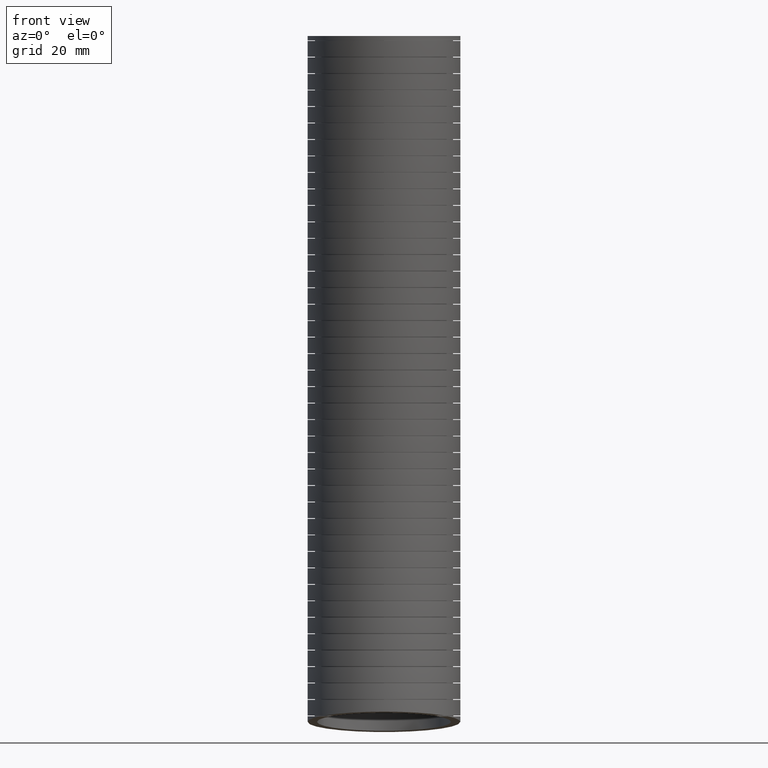
[diagram: clean part render]
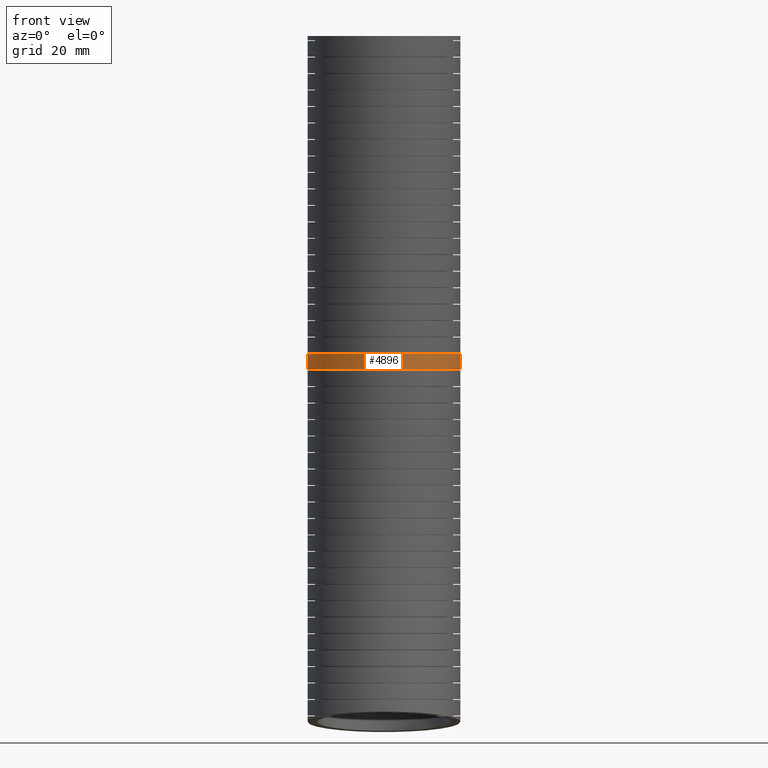
[diagram: same view with one face highlighted and labeled with its STEP entity id]
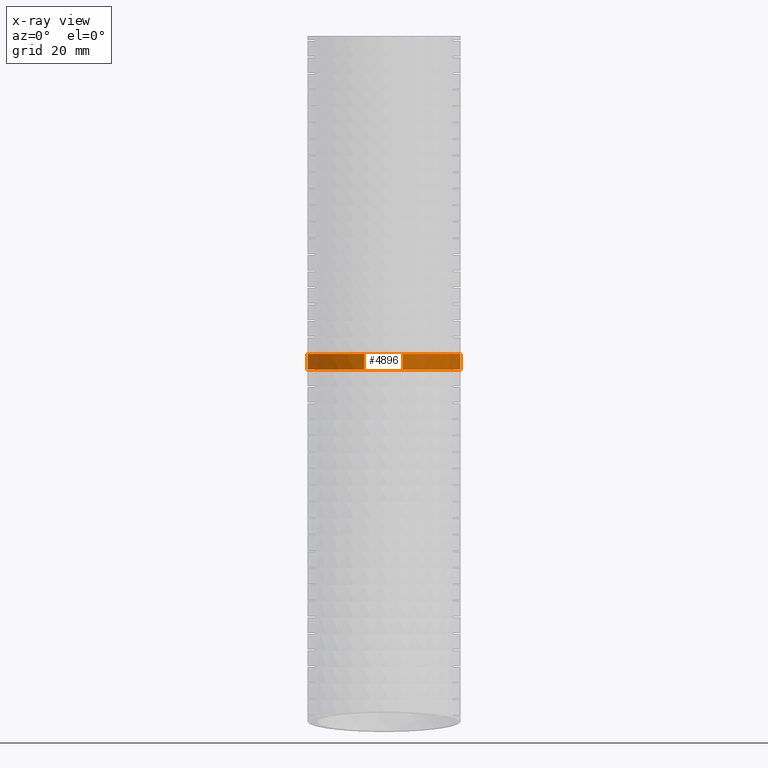
[diagram: x-ray of the same camera — body ghosted, the highlighted face saturated]
A machine part, front view. The second image highlights one B-rep face of the part: STEP entity #4896.
The next image is the same camera in x-ray: the body ghosted, the highlighted face saturated — about 0% of this face is hidden behind the body in this view.
In plain terms, the highlighted face is a freeform B-spline surface patch.
Its self-contained STEP definition (entity closure, byte-faithful):
#4081 = ORIENTED_EDGE ( 'NONE', *, *, #4100, .T. ) ;
#4094 = VERTEX_POINT ( 'NONE', #15725 ) ;
#4100 = EDGE_CURVE ( 'NONE', #4352, #4094, #15723, .T. ) ;
#4352 = VERTEX_POINT ( 'NONE', #15903 ) ;
#4660 = ORIENTED_EDGE ( 'NONE', *, *, #4698, .T. ) ;
#4693 = EDGE_CURVE ( 'NONE', #4706, #4713, #16092, .T. ) ;
#4698 = EDGE_CURVE ( 'NONE', #4713, #4352, #16112, .T. ) ;
#4706 = VERTEX_POINT ( 'NONE', #16111 ) ;
#4713 = VERTEX_POINT ( 'NONE', #16113 ) ;
#4883 = ORIENTED_EDGE ( 'NONE', *, *, #4693, .T. ) ;
#4896 = ADVANCED_FACE ( 'NONE', ( #16110 ), #16140, .T. ) ;
#4973 = EDGE_LOOP ( 'NONE', ( #4883, #4660, #4081, #6795 ) ) ;
#6794 = EDGE_CURVE ( 'NONE', #4706, #4094, #16777, .T. ) ;
#6795 = ORIENTED_EDGE ( 'NONE', *, *, #6794, .F. ) ;
#15109 = CARTESIAN_POINT ( 'NONE',  ( -0.8453911853962258200, -0.4942700873210957900, -4.657285663069735900 ) ) ;
#15111 = CARTESIAN_POINT ( 'NONE',  ( -0.8660988687422954700, -0.4663568842312531000, -4.657285663069735000 ) ) ;
#15112 = CARTESIAN_POINT ( 'NONE',  ( -0.9046612405828737800, -0.4087136842843680500, -4.657285663069735000 ) ) ;
#15426 = CARTESIAN_POINT ( 'NONE',  ( -0.8010625652170737500, -0.5482413268941617200, -4.657285663069738600 ) ) ;
#15431 = CARTESIAN_POINT ( 'NONE',  ( -0.7773311330619625500, -0.5743884700276854500, -4.657285663069735000 ) ) ;
#15711 = CARTESIAN_POINT ( 'NONE',  ( -0.9225158397272162900, -0.3789836305289326400, -4.657285663069734100 ) ) ;
#15712 = CARTESIAN_POINT ( 'NONE',  ( -0.9553491923514303400, -0.3176921777999721100, -4.657285663069733200 ) ) ;
#15713 = CARTESIAN_POINT ( 'NONE',  ( -0.9703500385071093200, -0.2860780736438339200, -4.657285663069732400 ) ) ;
#15714 = CARTESIAN_POINT ( 'NONE',  ( -1.010740073292870200, -0.1887162028222115800, -4.657285663069734100 ) ) ;
#15715 = CARTESIAN_POINT ( 'NONE',  ( -1.030862584132570700, -0.1222169454220043600, -4.657285663069738600 ) ) ;
#15716 = CARTESIAN_POINT ( 'NONE',  ( -1.051225174703641600, -0.02017110854454347600, -4.657285663069737700 ) ) ;
#15717 = CARTESIAN_POINT ( 'NONE',  ( -1.056363759720158300, 0.01422982138132236300, -4.657285663069733200 ) ) ;
#15718 = CARTESIAN_POINT ( 'NONE',  ( -1.061537566024769500, 0.06642387819198908300, -4.657285663069734100 ) ) ;
#15719 = CARTESIAN_POINT ( 'NONE',  ( -1.062840886495579200, 0.08396619183041380300, -4.657285663069735900 ) ) ;
#15720 = CARTESIAN_POINT ( 'NONE',  ( -1.064571588414465800, 0.1190221265583098600, -4.657285663069735000 ) ) ;
#15721 = CARTESIAN_POINT ( 'NONE',  ( -1.064999999999999700, 0.1365028548803823800, -4.657285663069733200 ) ) ;
#15722 = CARTESIAN_POINT ( 'NONE',  ( -1.064999999999999500, 0.1539372661295642100, -4.657285663069734100 ) ) ;
#15723 = B_SPLINE_CURVE_WITH_KNOTS ( 'NONE', 3,
 ( #15722, #15721, #15720, #15719, #15718, #15717, #15716, #15715, #15714, #15713, #15712, #15711, #15112, #15111, #15109, #15426, #15431, #15783, #15782, #15781, #15780, #15779, #15778, #15777, #15776, #15775, #15774, #15773, #15772, #15771, #15770, #15769, #15768, #15767, #15766, #15765, #15764, #15763, #15762, #15761, #15760, #15759, #15758, #15757, #15756, #15755, #15754, #15753, #15752, #15751, #15750, #15749, #15748, #15747, #15746, #15745, #15744, #15743, #15742, #15741, #15740, #15739, #15738, #15737, #15736, #15735 ),
 .UNSPECIFIED., .F., .F.,
 ( 4, 2, 2, 2, 2, 2, 2, 2, 2, 2, 2, 2, 2, 2, 2, 2, 2, 2, 2, 2, 2, 2, 2, 2, 2, 2, 2, 2, 2, 2, 2, 2, 4 ),
 ( 0.08545033282308693600, 0.08678554168476158800, 0.08812075054643624100, 0.09079116826978556000, 0.09613200371648417100, 0.09880242143983347700, 0.1014728391631827800, 0.1041432568865320900, 0.1068136746098813900, 0.1121545100565799900, 0.1148249277799293000, 0.1174953455032786100, 0.1228361809499772000, 0.1241713898116518500, 0.1255065986733265000, 0.1281770163966758100, 0.1308474341200251100, 0.1321826429816997700, 0.1335178518433744200, 0.1388586872900730300, 0.1415291050134223300, 0.1428643138750970200, 0.1441995227367716700, 0.1495403581834702500, 0.1508755670451449000, 0.1522107759068195300, 0.1548811936301688300, 0.1602220290768674400, 0.1615572379385420700, 0.1628924468002167200, 0.1655628645235660000, 0.1682332822469153100, 0.1709036999702645800 ),
 .UNSPECIFIED. ) ;
#15725 = CARTESIAN_POINT ( 'NONE',  ( 1.064999999999999500, 0.1539372661255022400, -4.657285662877984400 ) ) ;
#15735 = CARTESIAN_POINT ( 'NONE',  ( 1.064999999999999500, 0.1539372661255022400, -4.657285662877984400 ) ) ;
#15736 = CARTESIAN_POINT ( 'NONE',  ( 1.064999999999999500, 0.1187709176244325500, -4.657285662877984400 ) ) ;
#15737 = CARTESIAN_POINT ( 'NONE',  ( 1.063243924835893100, 0.08358252330516802200, -4.657285663069736800 ) ) ;
#15738 = CARTESIAN_POINT ( 'NONE',  ( 1.056349076503444200, 0.01413729324037823000, -4.657285663069738600 ) ) ;
#15739 = CARTESIAN_POINT ( 'NONE',  ( 1.051216435516471500, -0.02022086656967275700, -4.657285663069735900 ) ) ;
#15740 = CARTESIAN_POINT ( 'NONE',  ( 1.037644837580324000, -0.08822214222372992700, -4.657285663069736800 ) ) ;
#15741 = CARTESIAN_POINT ( 'NONE',  ( 1.029205803998160900, -0.1218652414946228400, -4.657285663069735900 ) ) ;
#15742 = CARTESIAN_POINT ( 'NONE',  ( 1.014043482431298500, -0.1717884096396510900, -4.657285663069734100 ) ) ;
#15743 = CARTESIAN_POINT ( 'NONE',  ( 1.008571341997000600, -0.1883390592800444400, -4.657285663069735900 ) ) ;
#15744 = CARTESIAN_POINT ( 'NONE',  ( 0.9967777557340761200, -0.2212566826192445000, -4.657285663069736800 ) ) ;
#15745 = CARTESIAN_POINT ( 'NONE',  ( 0.9904385334346963400, -0.2376654488662865200, -4.657285663069738600 ) ) ;
#15746 = CARTESIAN_POINT ( 'NONE',  ( 0.9567953615614458500, -0.3187056081249912100, -4.657285663069738600 ) ) ;
#15747 = CARTESIAN_POINT ( 'NONE',  ( 0.9239441752176225100, -0.3798933434793690400, -4.657285663069734100 ) ) ;
#15748 = CARTESIAN_POINT ( 'NONE',  ( 0.8660704387267182900, -0.4663974435806536600, -4.657285663069733200 ) ) ;
#15749 = CARTESIAN_POINT ( 'NONE',  ( 0.8453358723465407300, -0.4943461172899295500, -4.657285663069735900 ) ) ;
#15750 = CARTESIAN_POINT ( 'NONE',  ( 0.8120123613604304200, -0.5349052935731686300, -4.657285663069735000 ) ) ;
#15751 = CARTESIAN_POINT ( 'NONE',  ( 0.8004997992511434500, -0.5482330726822437500, -4.657285663069732400 ) ) ;
#15752 = CARTESIAN_POINT ( 'NONE',  ( 0.7769279265443953500, -0.5741928853250416500, -4.657285663069733200 ) ) ;
#15753 = CARTESIAN_POINT ( 'NONE',  ( 0.7648657833810282900, -0.5868330644337919100, -4.657285663069729700 ) ) ;
#15754 = CARTESIAN_POINT ( 'NONE',  ( 0.7031998501629670400, -0.6483670777226455700, -4.657285663069730600 ) ) ;
#15755 = CARTESIAN_POINT ( 'NONE',  ( 0.6495689697930272500, -0.6923076952607379900, -4.657285663069735000 ) ) ;
#15756 = CARTESIAN_POINT ( 'NONE',  ( 0.5771721633908979400, -0.7406430128467862400, -4.657285663069735900 ) ) ;
#15757 = CARTESIAN_POINT ( 'NONE',  ( 0.5624224858785509300, -0.7499775944095942200, -4.657285663069736800 ) ) ;
#15758 = CARTESIAN_POINT ( 'NONE',  ( 0.5323729683171045700, -0.7679700718839042000, -4.657285663069735900 ) ) ;
#15759 = CARTESIAN_POINT ( 'NONE',  ( 0.5170372060665793200, -0.7766452286611501600, -4.657285663069735900 ) ) ;
#15760 = CARTESIAN_POINT ( 'NONE',  ( 0.4706720595735836000, -0.8013810263278760000, -4.657285663069734100 ) ) ;
#15761 = CARTESIAN_POINT ( 'NONE',  ( 0.4391725579407300700, -0.8162320748260909500, -4.657285663069733200 ) ) ;
#15762 = CARTESIAN_POINT ( 'NONE',  ( 0.3429555435913170200, -0.8560050226128511600, -4.657285663069734100 ) ) ;
#15763 = CARTESIAN_POINT ( 'NONE',  ( 0.2765359814806682100, -0.8761925094090373700, -4.657285663069735900 ) ) ;
#15764 = CARTESIAN_POINT ( 'NONE',  ( 0.1905817700241098400, -0.8932774647219413600, -4.657285663069735000 ) ) ;
#15765 = CARTESIAN_POINT ( 'NONE',  ( 0.1732248040824791400, -0.8962833338630058500, -4.657285663069733200 ) ) ;
#15766 = CARTESIAN_POINT ( 'NONE',  ( 0.1385966972911815700, -0.9014041739252572900, -4.657285663069735000 ) ) ;
#15767 = CARTESIAN_POINT ( 'NONE',  ( 0.1212792680368941100, -0.9035295263886993200, -4.657285663069735900 ) ) ;
#15768 = CARTESIAN_POINT ( 'NONE',  ( 0.06931702318380768300, -0.9086223526106673700, -4.657285663069734100 ) ) ;
#15769 = CARTESIAN_POINT ( 'NONE',  ( 0.03466227393196768400, -0.9103096156940844200, -4.657285663069735000 ) ) ;
#15770 = CARTESIAN_POINT ( 'NONE',  ( -0.03467341164515269600, -0.9103092534055312600, -4.657285663069734100 ) ) ;
#15771 = CARTESIAN_POINT ( 'NONE',  ( -0.06935434768127042600, -0.9086216652997896000, -4.657285663069734100 ) ) ;
#15772 = CARTESIAN_POINT ( 'NONE',  ( -0.1213957217779739900, -0.9035166215163205100, -4.657285663069733200 ) ) ;
#15773 = CARTESIAN_POINT ( 'NONE',  ( -0.1387461807282588100, -0.9013852348691463500, -4.657285663069734100 ) ) ;
#15774 = CARTESIAN_POINT ( 'NONE',  ( -0.1734538974656180700, -0.8962462538593757300, -4.657285663069735900 ) ) ;
#15775 = CARTESIAN_POINT ( 'NONE',  ( -0.1907941724355496400, -0.8932381936445464900, -4.657285663069735000 ) ) ;
#15776 = CARTESIAN_POINT ( 'NONE',  ( -0.2765547592925028400, -0.8761769109948759300, -4.657285663069735900 ) ) ;
#15777 = CARTESIAN_POINT ( 'NONE',  ( -0.3429366373800876200, -0.8560156566916199400, -4.657285663069734100 ) ) ;
#15778 = CARTESIAN_POINT ( 'NONE',  ( -0.4392374102246940400, -0.8162038563726876600, -4.657285663069735900 ) ) ;
#15779 = CARTESIAN_POINT ( 'NONE',  ( -0.4707884515559518400, -0.8013269347094802400, -4.657285663069731500 ) ) ;
#15780 = CARTESIAN_POINT ( 'NONE',  ( -0.5327549423352667700, -0.7682517664765355900, -4.657285663069731500 ) ) ;
#15781 = CARTESIAN_POINT ( 'NONE',  ( -0.5627990066218215800, -0.7502422679386401300, -4.657285663069735000 ) ) ;
#15782 = CARTESIAN_POINT ( 'NONE',  ( -0.6495537024140327600, -0.6923116810370328900, -4.657285663069735900 ) ) ;
#15783 = CARTESIAN_POINT ( 'NONE',  ( -0.7032060047358513800, -0.6483727269070604900, -4.657285663069734100 ) ) ;
#15903 = CARTESIAN_POINT ( 'NONE',  ( -1.064999999999999500, 0.1539372661295642100, -4.657285663069734100 ) ) ;
#16057 = CARTESIAN_POINT ( 'NONE',  ( -0.1736278260836785200, -0.8989930269511802200, -4.437302771434573900 ) ) ;
#16058 = CARTESIAN_POINT ( 'NONE',  ( -0.1390053885778330100, -0.9041271616160371200, -4.437302771434573900 ) ) ;
#16059 = CARTESIAN_POINT ( 'NONE',  ( -0.1215231829110978400, -0.9062806588467040600, -4.437302771434577400 ) ) ;
#16060 = CARTESIAN_POINT ( 'NONE',  ( -0.06916595928602230200, -0.9114183038881617000, -4.437302771434576500 ) ) ;
#16061 = CARTESIAN_POINT ( 'NONE',  ( -0.03435393909734708900, -0.9130989509531890500, -4.437302771434580100 ) ) ;
#16062 = CARTESIAN_POINT ( 'NONE',  ( 0.06981200300104768700, -0.9130629762034215800, -4.437302771434577400 ) ) ;
#16063 = CARTESIAN_POINT ( 'NONE',  ( 0.1388983777095549300, -0.9063167752896839100, -4.437302771434580100 ) ) ;
#16064 = CARTESIAN_POINT ( 'NONE',  ( 0.2247972932952206300, -0.8892543604560964000, -4.437302771434578300 ) ) ;
#16065 = CARTESIAN_POINT ( 'NONE',  ( 0.2419922537333072900, -0.8853951423694436100, -4.437302771434577400 ) ) ;
#16066 = CARTESIAN_POINT ( 'NONE',  ( 0.2759826328447686500, -0.8768789162230255000, -4.437302771434575600 ) ) ;
#16067 = CARTESIAN_POINT ( 'NONE',  ( 0.2928117579087911600, -0.8722172170039155200, -4.437302771434575600 ) ) ;
#16068 = CARTESIAN_POINT ( 'NONE',  ( 0.3428097209305285800, -0.8570427020933870700, -4.437302771434576500 ) ) ;
#16069 = CARTESIAN_POINT ( 'NONE',  ( 0.4081708802813139300, -0.8336438447868125300, -4.437302771434579200 ) ) ;
#16070 = CARTESIAN_POINT ( 'NONE',  ( 0.4709617312976103200, -0.8039983731449019700, -4.437302771434578300 ) ) ;
#16071 = CARTESIAN_POINT ( 'NONE',  ( 0.5170763133635765100, -0.7793860865777942900, -4.437302771434577400 ) ) ;
#16072 = CARTESIAN_POINT ( 'NONE',  ( 0.5322844581402761400, -0.7707849227566258000, -4.437302771434574700 ) ) ;
#16073 = CARTESIAN_POINT ( 'NONE',  ( 0.5623678598190750000, -0.7527735784910132300, -4.437302771434575600 ) ) ;
#16074 = CARTESIAN_POINT ( 'NONE',  ( 0.5772553324747469200, -0.7433520184935963300, -4.437302771434577400 ) ) ;
#16075 = CARTESIAN_POINT ( 'NONE',  ( 0.6500366519757456700, -0.6947361721734810500, -4.437302771434577400 ) ) ;
#16076 = CARTESIAN_POINT ( 'NONE',  ( 0.7036698701337519300, -0.6506868242105199300, -4.437302771434578300 ) ) ;
#16077 = CARTESIAN_POINT ( 'NONE',  ( 0.7773928550041802100, -0.5770585034131672200, -4.437302771434578300 ) ) ;
#16078 = CARTESIAN_POINT ( 'NONE',  ( 0.8008380240558188300, -0.5512476747779206900, -4.437302771434578300 ) ) ;
#16079 = CARTESIAN_POINT ( 'NONE',  ( 0.8342574798439453800, -0.5105680791456274100, -4.437302771434579200 ) ) ;
#16080 = CARTESIAN_POINT ( 'NONE',  ( 0.8450887069881385400, -0.4966961627777312100, -4.437302771434579200 ) ) ;
#16081 = CARTESIAN_POINT ( 'NONE',  ( 0.8659300588408286300, -0.4686035029584956800, -4.437302771434580100 ) ) ;
#16082 = CARTESIAN_POINT ( 'NONE',  ( 0.8759705998135923800, -0.4543465091658792600, -4.437302771434575600 ) ) ;
#16083 = CARTESIAN_POINT ( 'NONE',  ( 0.9243025331338855500, -0.3820247926113170500, -4.437302771434578300 ) ) ;
#16084 = CARTESIAN_POINT ( 'NONE',  ( 0.9570350625023723600, -0.3208794490088239800, -4.437302771434575600 ) ) ;
#16085 = CARTESIAN_POINT ( 'NONE',  ( 0.9971535802005941900, -0.2241847276499481500, -4.437302771434575600 ) ) ;
#16086 = CARTESIAN_POINT ( 'NONE',  ( 1.009061308294755300, -0.1909416328289505500, -4.437302771434576500 ) ) ;
#16087 = CARTESIAN_POINT ( 'NONE',  ( 1.029349492297793300, -0.1240508760850585500, -4.437302771434575600 ) ) ;
#16088 = CARTESIAN_POINT ( 'NONE',  ( 1.037786497198016200, -0.09031474505256148500, -4.437302771434573900 ) ) ;
#16089 = CARTESIAN_POINT ( 'NONE',  ( 1.058090566174088000, 0.01174643569094703000, -4.437302771434575600 ) ) ;
#16090 = CARTESIAN_POINT ( 'NONE',  ( 1.064999999999999300, 0.08091587359053001300, -4.437302771242855200 ) ) ;
#16091 = CARTESIAN_POINT ( 'NONE',  ( 1.064999999999999500, 0.1512621326764835600, -4.437302771242856100 ) ) ;
#16092 = B_SPLINE_CURVE_WITH_KNOTS ( 'NONE', 3,
 ( #16091, #16090, #16089, #16088, #16087, #16086, #16085, #16084, #16083, #16082, #16081, #16080, #16079, #16078, #16077, #16076, #16075, #16074, #16073, #16072, #16071, #16070, #16069, #16068, #16067, #16066, #16065, #16064, #16063, #16062, #16061, #16060, #16059, #16058, #16057, #16139, #16138, #16137, #16136, #16135, #16134, #16133, #16132, #16131, #16130, #16129, #16128, #16127, #16126, #16125, #16124, #16123, #16122, #16121, #16120, #16119, #16118, #16117, #16116, #16115, #16114 ),
 .UNSPECIFIED., .F., .F.,
 ( 4, 2, 2, 2, 2, 2, 2, 2, 2, 2, 2, 1, 2, 2, 2, 2, 2, 2, 2, 2, 2, 2, 2, 2, 2, 2, 2, 2, 2, 2, 4 ),
 ( 0.0000000000000000000, 0.005284286377100275500, 0.007926429565650414100, 0.01056857275420055300, 0.01585285913130083200, 0.01717393072557590200, 0.01849500231985097200, 0.02113714550840110900, 0.02642143188550140400, 0.02774250347977648100, 0.02906357507405155800, 0.03170571826260171200, 0.03434786145115186600, 0.03566893304542694700, 0.03699000463970202000, 0.04227429101680232200, 0.04491643420535246900, 0.04623750579962755000, 0.04755857739390262400, 0.05284286377100291100, 0.05416393536527799200, 0.05548500695955306500, 0.05812715014810321300, 0.06341143652520350700, 0.06605357971375366800, 0.06869572290230381600, 0.07133786609085396300, 0.07398000927940411000, 0.07926429565650439100, 0.08190643884505453800, 0.08454858203360468600 ),
 .UNSPECIFIED. ) ;
#16105 = CARTESIAN_POINT ( 'NONE',  ( -1.064999999999999500, 0.1539372661295642100, -4.657285663069734100 ) ) ;
#16106 = CARTESIAN_POINT ( 'NONE',  ( -1.064999999999999500, 0.1531606685397351700, -4.583962943546887400 ) ) ;
#16107 = CARTESIAN_POINT ( 'NONE',  ( -1.064999999999999500, 0.1522671142977944900, -4.510635234371220800 ) ) ;
#16108 = CARTESIAN_POINT ( 'NONE',  ( -1.064999999999999700, 0.1512621326817385500, -4.437302771434575600 ) ) ;
#16110 = FACE_OUTER_BOUND ( 'NONE', #4973, .T. ) ;
#16111 = CARTESIAN_POINT ( 'NONE',  ( 1.064999999999999500, 0.1512621326764835600, -4.437302771242856100 ) ) ;
#16112 = B_SPLINE_CURVE_WITH_KNOTS ( 'NONE', 3,
 ( #16108, #16107, #16106, #16105 ),
 .UNSPECIFIED., .F., .F.,
 ( 4, 4 ),
 ( 0.4629317732269495100, 0.4859034935097397700 ),
 .UNSPECIFIED. ) ;
#16113 = CARTESIAN_POINT ( 'NONE',  ( -1.064999999999999700, 0.1512621326817385500, -4.437302771434575600 ) ) ;
#16114 = CARTESIAN_POINT ( 'NONE',  ( -1.064999999999999700, 0.1512621326817385500, -4.437302771434575600 ) ) ;
#16115 = CARTESIAN_POINT ( 'NONE',  ( -1.064999999999999700, 0.1165184058004421300, -4.437302771434575600 ) ) ;
#16116 = CARTESIAN_POINT ( 'NONE',  ( -1.063302199803644900, 0.08166679264929901900, -4.437302771434576500 ) ) ;
#16117 = CARTESIAN_POINT ( 'NONE',  ( -1.056395496753711900, 0.01174045424610085900, -4.437302771434576500 ) ) ;
#16118 = CARTESIAN_POINT ( 'NONE',  ( -1.051222303618828400, -0.02289722535415519200, -4.437302771434573900 ) ) ;
#16119 = CARTESIAN_POINT ( 'NONE',  ( -1.030796729103603300, -0.1252072242509994800, -4.437302771434573900 ) ) ;
#16120 = CARTESIAN_POINT ( 'NONE',  ( -1.010656502784624400, -0.1915803426699914100, -4.437302771434579200 ) ) ;
#16121 = CARTESIAN_POINT ( 'NONE',  ( -0.9705412386152045800, -0.2883559242939940400, -4.437302771434579200 ) ) ;
#16122 = CARTESIAN_POINT ( 'NONE',  ( -0.9554225854871468700, -0.3202747498778900100, -4.437302771434572100 ) ) ;
#16123 = CARTESIAN_POINT ( 'NONE',  ( -0.9224429016492838900, -0.3818453458984920100, -4.437302771434571200 ) ) ;
#16124 = CARTESIAN_POINT ( 'NONE',  ( -0.9045387594974315700, -0.4116388516690948600, -4.437302771434575600 ) ) ;
#16125 = CARTESIAN_POINT ( 'NONE',  ( -0.8659607344947344300, -0.4692835547334467400, -4.437302771434575600 ) ) ;
#16126 = CARTESIAN_POINT ( 'NONE',  ( -0.8452867632416034600, -0.4971346900342016900, -4.437302771434581000 ) ) ;
#16127 = CARTESIAN_POINT ( 'NONE',  ( -0.8011472311845923000, -0.5508793304321666400, -4.437302771434579200 ) ) ;
#16128 = CARTESIAN_POINT ( 'NONE',  ( -0.7776372468013430500, -0.5768174381436411700, -4.437302771434575600 ) ) ;
#16129 = CARTESIAN_POINT ( 'NONE',  ( -0.7030438595955428300, -0.6513059971655633700, -4.437302771434576500 ) ) ;
#16130 = CARTESIAN_POINT ( 'NONE',  ( -0.6492480832677234300, -0.6952884282119965500, -4.437302771434579200 ) ) ;
#16131 = CARTESIAN_POINT ( 'NONE',  ( -0.5626861326059201500, -0.7530709810590257000, -4.437302771434579200 ) ) ;
#16132 = CARTESIAN_POINT ( 'NONE',  ( -0.5328468803623063200, -0.7709565704844443300, -4.437302771434580100 ) ) ;
#16133 = CARTESIAN_POINT ( 'NONE',  ( -0.4865741288673304200, -0.7956718544210861200, -4.437302771434579200 ) ) ;
#16134 = CARTESIAN_POINT ( 'NONE',  ( -0.4708559110429494400, -0.8035764623958319100, -4.437302771434577400 ) ) ;
#16135 = CARTESIAN_POINT ( 'NONE',  ( -0.4391122163233461800, -0.8185660667624500300, -4.437302771434580100 ) ) ;
#16136 = CARTESIAN_POINT ( 'NONE',  ( -0.4231173058205471800, -0.8256395582670113000, -4.437302771434581000 ) ) ;
#16137 = CARTESIAN_POINT ( 'NONE',  ( -0.3425394692515550400, -0.8589416531759732600, -4.437302771434581000 ) ) ;
#16138 = CARTESIAN_POINT ( 'NONE',  ( -0.2761638558340180900, -0.8790329330374930800, -4.437302771434574700 ) ) ;
#16139 = CARTESIAN_POINT ( 'NONE',  ( -0.1908171062522925900, -0.8960084989033064700, -4.437302771434573000 ) ) ;
#16140 =( BOUNDED_SURFACE ( )  B_SPLINE_SURFACE ( 3, 3, ( 
 ( #16182, #16181, #16180, #16179, #16178, #16177 ),
 ( #16176, #16175, #16174, #16173, #16172, #16171 ),
 ( #16170, #16169, #16168, #16167, #16166, #16165 ),
 ( #16164, #16163, #16162, #16161, #16160, #16159 ),
 ( #16158, #16157, #16156, #16155, #16154, #16153 ),
 ( #16152, #16151, #16150, #16149, #16216, #16215 ),
 ( #16214, #16213, #16212, #16211, #16210, #16209 ) ),
 .UNSPECIFIED., .F., .F., .F. ) 
 B_SPLINE_SURFACE_WITH_KNOTS ( ( 4, 3, 4 ),
 ( 4, 1, 1, 4 ),
 ( 0.0000000000000000000, 0.5000000000000000000, 1.000000000000000000 ),
 ( 0.0000000000000000000, 0.5600000000000001600, 0.9402239691641354200, 1.000000000000000000 ),
 .UNSPECIFIED. ) 
 GEOMETRIC_REPRESENTATION_ITEM ( )  RATIONAL_B_SPLINE_SURFACE ( (
 ( 1.000000000000000000, 1.000000000000000000, 1.000000000000000200, 1.000000000000000200, 1.000000000000000200, 1.000000000000000200),
 ( 0.3333333333333333100, 0.3333333333333333100, 0.3333333333333332600, 0.3333333333333334300, 0.3333333333333333700, 0.3333333333333333700),
 ( 0.3333333333333333100, 0.3333333333333333100, 0.3333333333333332600, 0.3333333333333334300, 0.3333333333333333700, 0.3333333333333333700),
 ( 1.000000000000000000, 1.000000000000000000, 1.000000000000000200, 1.000000000000000200, 1.000000000000000200, 1.000000000000000200),
 ( 0.3333333333333333100, 0.3333333333333333100, 0.3333333333333332600, 0.3333333333333334300, 0.3333333333333333700, 0.3333333333333333700),
 ( 0.3333333333333333100, 0.3333333333333333100, 0.3333333333333332600, 0.3333333333333334300, 0.3333333333333333700, 0.3333333333333333700),
 ( 1.000000000000000000, 1.000000000000000000, 1.000000000000000200, 1.000000000000000200, 1.000000000000000200, 1.000000000000000200) ) ) 
 REPRESENTATION_ITEM ( '' )  SURFACE ( )  );
#16149 = CARTESIAN_POINT ( 'NONE',  ( 1.064999999999999700, 2.232156786707371500, -8.185435810711052100 ) ) ;
#16150 = CARTESIAN_POINT ( 'NONE',  ( 1.064999999999999900, 2.345283078702082900, -4.843727318243294300 ) ) ;
#16151 = CARTESIAN_POINT ( 'NONE',  ( 1.065000000000000200, 2.210360350555081500, -1.808054899781085700 ) ) ;
#16152 = CARTESIAN_POINT ( 'NONE',  ( 1.064999999999999900, 2.129999999999999900, 0.0000000000000000000 ) ) ;
#16153 = CARTESIAN_POINT ( 'NONE',  ( -1.064999999999999700, 2.080788144512650400, -9.855435472541238100 ) ) ;
#16154 = CARTESIAN_POINT ( 'NONE',  ( -1.064999999999999700, 2.098892687478189700, -9.655694098161024600 ) ) ;
#16155 = CARTESIAN_POINT ( 'NONE',  ( -1.064999999999999500, 2.232156786707371500, -8.185435810711052100 ) ) ;
#16156 = CARTESIAN_POINT ( 'NONE',  ( -1.064999999999999500, 2.345283078702082900, -4.843727318243294300 ) ) ;
#16157 = CARTESIAN_POINT ( 'NONE',  ( -1.064999999999999900, 2.210360350555081500, -1.808054899781085700 ) ) ;
#16158 = CARTESIAN_POINT ( 'NONE',  ( -1.064999999999999900, 2.129999999999999900, 0.0000000000000000000 ) ) ;
#16159 = CARTESIAN_POINT ( 'NONE',  ( -1.064999999999999700, -0.02999999999999980100, -9.569999999999996700 ) ) ;
#16160 = CARTESIAN_POINT ( 'NONE',  ( -1.064999999999999700, -0.01282253193203157000, -9.380021792021830500 ) ) ;
#16161 = CARTESIAN_POINT ( 'NONE',  ( -1.064999999999999700, 0.1136175452062335600, -7.981628316551387500 ) ) ;
#16162 = CARTESIAN_POINT ( 'NONE',  ( -1.064999999999999500, 0.2122813731536105100, -4.795410929656176400 ) ) ;
#16163 = CARTESIAN_POINT ( 'NONE',  ( -1.064999999999999900, 0.07923988111738802800, -1.790019474294677300 ) ) ;
#16164 = CARTESIAN_POINT ( 'NONE',  ( -1.064999999999999900, 1.304248841091931100E-016, 0.0000000000000000000 ) ) ;
#16165 = CARTESIAN_POINT ( 'NONE',  ( -1.064999999999999900, -2.140788144512650400, -9.284564527458751800 ) ) ;
#16166 = CARTESIAN_POINT ( 'NONE',  ( -1.064999999999999900, -2.124537751342253000, -9.104349485882636400 ) ) ;
#16167 = CARTESIAN_POINT ( 'NONE',  ( -1.064999999999999700, -2.004921696294905200, -7.777820822391721100 ) ) ;
#16168 = CARTESIAN_POINT ( 'NONE',  ( -1.065000000000000400, -1.920720332394860500, -4.747094541069063900 ) ) ;
#16169 = CARTESIAN_POINT ( 'NONE',  ( -1.065000000000000200, -2.051880588320306000, -1.771984048808268300 ) ) ;
#16170 = CARTESIAN_POINT ( 'NONE',  ( -1.065000000000000200, -2.129999999999999900, 0.0000000000000000000 ) ) ;
#16171 = CARTESIAN_POINT ( 'NONE',  ( 1.064999999999999700, -2.140788144512650400, -9.284564527458751800 ) ) ;
#16172 = CARTESIAN_POINT ( 'NONE',  ( 1.064999999999999700, -2.124537751342253000, -9.104349485882636400 ) ) ;
#16173 = CARTESIAN_POINT ( 'NONE',  ( 1.064999999999999700, -2.004921696294905200, -7.777820822391721100 ) ) ;
#16174 = CARTESIAN_POINT ( 'NONE',  ( 1.064999999999999900, -1.920720332394860500, -4.747094541069063900 ) ) ;
#16175 = CARTESIAN_POINT ( 'NONE',  ( 1.065000000000000200, -2.051880588320306000, -1.771984048808268300 ) ) ;
#16176 = CARTESIAN_POINT ( 'NONE',  ( 1.064999999999999900, -2.129999999999999900, 0.0000000000000000000 ) ) ;
#16177 = CARTESIAN_POINT ( 'NONE',  ( 1.064999999999999700, -0.02999999999999993000, -9.569999999999996700 ) ) ;
#16178 = CARTESIAN_POINT ( 'NONE',  ( 1.064999999999999700, -0.01282253193203170200, -9.380021792021830500 ) ) ;
#16179 = CARTESIAN_POINT ( 'NONE',  ( 1.064999999999999700, 0.1136175452062334300, -7.981628316551387500 ) ) ;
#16180 = CARTESIAN_POINT ( 'NONE',  ( 1.064999999999999500, 0.2122813731536103700, -4.795410929656176400 ) ) ;
#16181 = CARTESIAN_POINT ( 'NONE',  ( 1.064999999999999900, 0.07923988111738790300, -1.790019474294677300 ) ) ;
#16182 = CARTESIAN_POINT ( 'NONE',  ( 1.064999999999999900, 0.0000000000000000000, 0.0000000000000000000 ) ) ;
#16209 = CARTESIAN_POINT ( 'NONE',  ( 1.064999999999999700, -0.02999999999999993000, -9.569999999999996700 ) ) ;
#16210 = CARTESIAN_POINT ( 'NONE',  ( 1.064999999999999700, -0.01282253193203170200, -9.380021792021830500 ) ) ;
#16211 = CARTESIAN_POINT ( 'NONE',  ( 1.064999999999999700, 0.1136175452062334300, -7.981628316551387500 ) ) ;
#16212 = CARTESIAN_POINT ( 'NONE',  ( 1.064999999999999500, 0.2122813731536103700, -4.795410929656176400 ) ) ;
#16213 = CARTESIAN_POINT ( 'NONE',  ( 1.064999999999999900, 0.07923988111738790300, -1.790019474294677300 ) ) ;
#16214 = CARTESIAN_POINT ( 'NONE',  ( 1.064999999999999900, 0.0000000000000000000, 0.0000000000000000000 ) ) ;
#16215 = CARTESIAN_POINT ( 'NONE',  ( 1.064999999999999700, 2.080788144512650400, -9.855435472541238100 ) ) ;
#16216 = CARTESIAN_POINT ( 'NONE',  ( 1.064999999999999700, 2.098892687478189700, -9.655694098161024600 ) ) ;
#16777 = B_SPLINE_CURVE_WITH_KNOTS ( 'NONE', 3,
 ( #16799, #16798, #16797, #16796 ),
 .UNSPECIFIED., .F., .F.,
 ( 4, 4 ),
 ( 0.4629317732069265200, 0.4859034934897126800 ),
 .UNSPECIFIED. ) ;
#16796 = CARTESIAN_POINT ( 'NONE',  ( 1.064999999999999500, 0.1539372661255022400, -4.657285662877984400 ) ) ;
#16797 = CARTESIAN_POINT ( 'NONE',  ( 1.064999999999999700, 0.1531606685375001000, -4.583962943355121700 ) ) ;
#16798 = CARTESIAN_POINT ( 'NONE',  ( 1.064999999999999700, 0.1522671142953605000, -4.510635234179459600 ) ) ;
#16799 = CARTESIAN_POINT ( 'NONE',  ( 1.064999999999999500, 0.1512621326764835600, -4.437302771242856100 ) ) ;